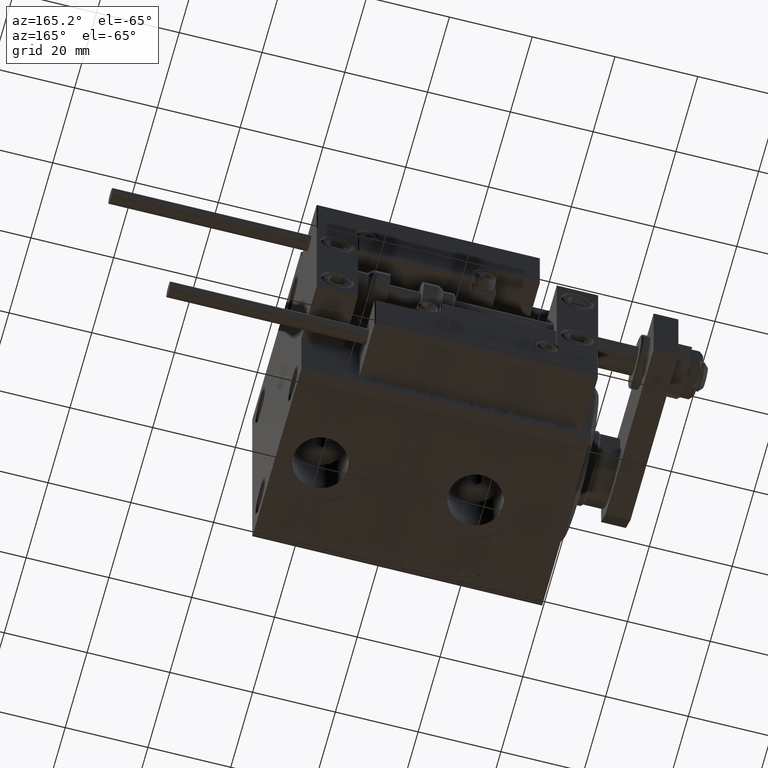
[diagram: clean part render]
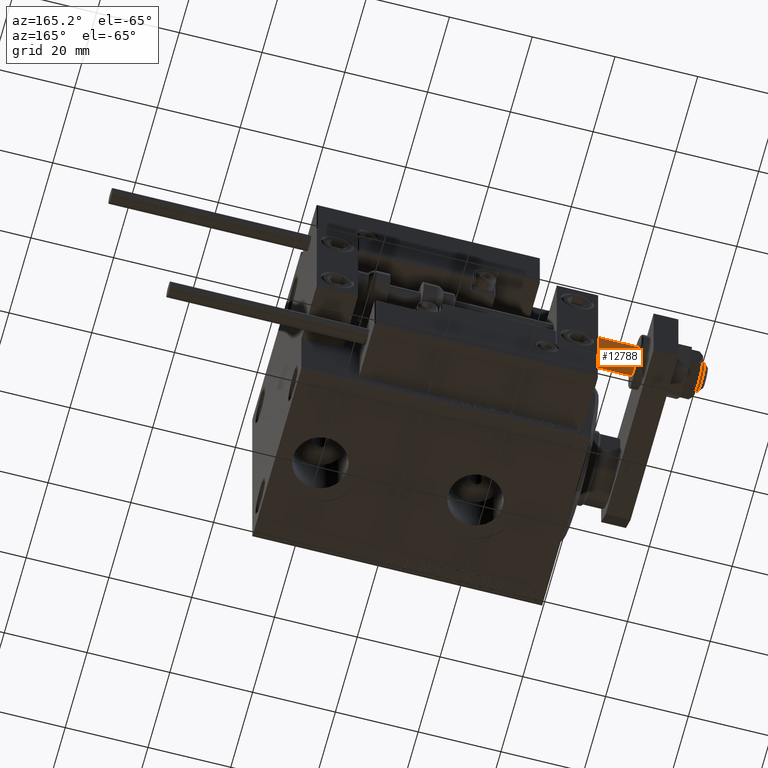
[diagram: same view with one face highlighted and labeled with its STEP entity id]
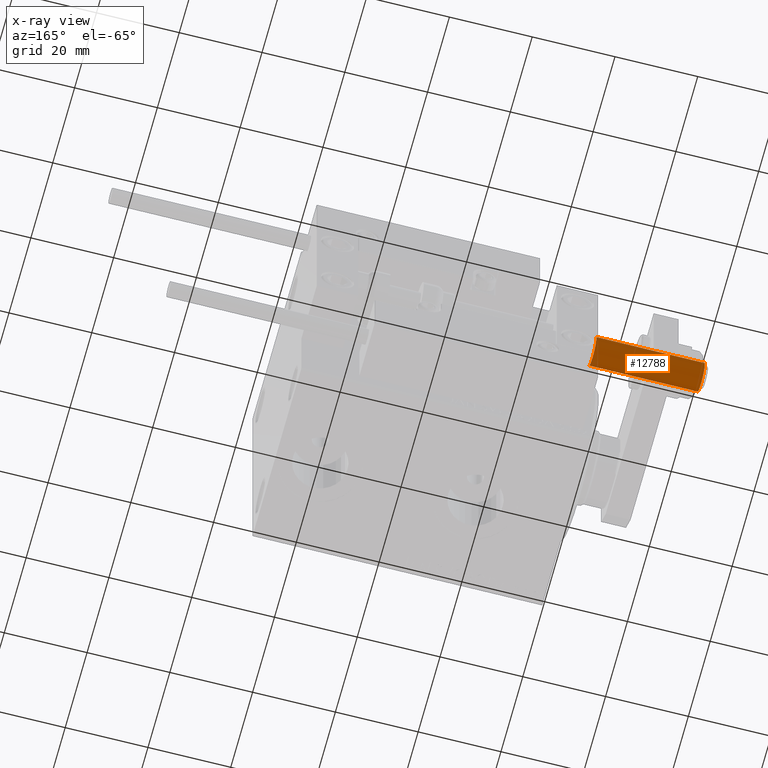
[diagram: x-ray of the same camera — body ghosted, the highlighted face saturated]
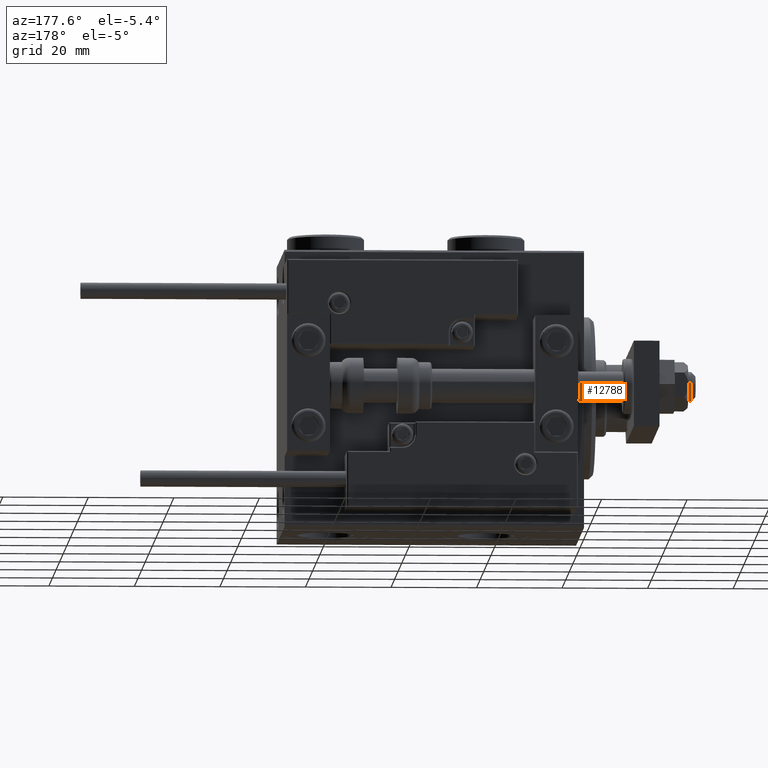
[diagram: same view with one face highlighted and labeled with its STEP entity id]
A machine part, auxiliary view. The second image highlights one B-rep face of the part: STEP entity #12788.
The next image is the same camera in x-ray: the body ghosted, the highlighted face saturated — about 1% of this face is hidden behind the body in this view.
A second angle (auxiliary view) of the same face is appended — the face is thin or edge-on in the first view.
In plain terms, the highlighted cylindrical surface (edge-blend (fillet) strip) has radius 3.5 mm, axis along (1, 0, 0).
Its self-contained STEP definition (entity closure, byte-faithful):
#4014 = AXIS2_PLACEMENT_3D ( 'NONE', #33231, #25254, #45188 ) ;
#5104 = VERTEX_POINT ( 'NONE', #7254 ) ;
#6633 = LINE ( 'NONE', #47817, #27710 ) ;
#7254 = CARTESIAN_POINT ( 'NONE',  ( 3.500000000000000000, 0.000000000000000000, 1.500000000000025535 ) ) ;
#7282 = CARTESIAN_POINT ( 'NONE',  ( 3.500000000000000000, 0.000000000000000000, -24.70000000000005969 ) ) ;
#7379 = EDGE_LOOP ( 'NONE', ( #18722, #15395, #39344, #17577 ) ) ;
#9761 = DIRECTION ( 'NONE',  ( -0.000000000000000000, -0.000000000000000000, 1.000000000000000000 ) ) ;
#9987 = EDGE_CURVE ( 'NONE', #13576, #41755, #49863, .T. ) ;
#12788 = ADVANCED_FACE ( 'NONE', ( #23863 ), #16676, .T. ) ;
#13576 = VERTEX_POINT ( 'NONE', #17751 ) ;
#14446 = VECTOR ( 'NONE', #9761, 1000.000000000000000 ) ;
#15395 = ORIENTED_EDGE ( 'NONE', *, *, #9987, .T. ) ;
#15704 = DIRECTION ( 'NONE',  ( 1.000000000000000000, 0.000000000000000000, 0.000000000000000000 ) ) ;
#16169 = AXIS2_PLACEMENT_3D ( 'NONE', #52119, #36963, #15704 ) ;
#16676 = CYLINDRICAL_SURFACE ( 'NONE', #46111, 3.500000000000000000 ) ;
#17577 = ORIENTED_EDGE ( 'NONE', *, *, #36123, .T. ) ;
#17751 = CARTESIAN_POINT ( 'NONE',  ( -3.500000000000000000, 4.286263797015735609E-16, -24.70000000000005969 ) ) ;
#18722 = ORIENTED_EDGE ( 'NONE', *, *, #44620, .F. ) ;
#20136 = DIRECTION ( 'NONE',  ( 1.000000000000000000, 0.000000000000000000, 0.000000000000000000 ) ) ;
#22111 = CIRCLE ( 'NONE', #16169, 3.500000000000000000 ) ;
#22863 = DIRECTION ( 'NONE',  ( -0.000000000000000000, -0.000000000000000000, 1.000000000000000000 ) ) ;
#23317 = CARTESIAN_POINT ( 'NONE',  ( -3.500000000000000000, 4.286263797015735609E-16, 1.500000000000025535 ) ) ;
#23863 = FACE_OUTER_BOUND ( 'NONE', #7379, .T. ) ;
#24599 = EDGE_CURVE ( 'NONE', #41755, #5104, #6633, .T. ) ;
#25254 = DIRECTION ( 'NONE',  ( 0.000000000000000000, 0.000000000000000000, 1.000000000000000000 ) ) ;
#27710 = VECTOR ( 'NONE', #22863, 1000.000000000000000 ) ;
#29958 = CARTESIAN_POINT ( 'NONE',  ( -3.500000000000000000, 4.286263797015735609E-16, -25.69999999999999929 ) ) ;
#32618 = CARTESIAN_POINT ( 'NONE',  ( 0.000000000000000000, 0.000000000000000000, -25.69999999999999929 ) ) ;
#33231 = CARTESIAN_POINT ( 'NONE',  ( 0.000000000000000000, 0.000000000000000000, -24.70000000000005969 ) ) ;
#36123 = EDGE_CURVE ( 'NONE', #5104, #41346, #22111, .T. ) ;
#36963 = DIRECTION ( 'NONE',  ( 0.000000000000000000, 0.000000000000000000, -1.000000000000000000 ) ) ;
#39344 = ORIENTED_EDGE ( 'NONE', *, *, #24599, .T. ) ;
#40318 = DIRECTION ( 'NONE',  ( -0.000000000000000000, -0.000000000000000000, 1.000000000000000000 ) ) ;
#41346 = VERTEX_POINT ( 'NONE', #23317 ) ;
#41755 = VERTEX_POINT ( 'NONE', #7282 ) ;
#44620 = EDGE_CURVE ( 'NONE', #13576, #41346, #46187, .T. ) ;
#45188 = DIRECTION ( 'NONE',  ( -1.000000000000000000, 0.000000000000000000, 0.000000000000000000 ) ) ;
#46111 = AXIS2_PLACEMENT_3D ( 'NONE', #32618, #40318, #20136 ) ;
#46187 = LINE ( 'NONE', #29958, #14446 ) ;
#47817 = CARTESIAN_POINT ( 'NONE',  ( 3.500000000000000000, 0.000000000000000000, -25.69999999999999929 ) ) ;
#49863 = CIRCLE ( 'NONE', #4014, 3.500000000000000000 ) ;
#52119 = CARTESIAN_POINT ( 'NONE',  ( 0.000000000000000000, 0.000000000000000000, 1.500000000000025535 ) ) ;